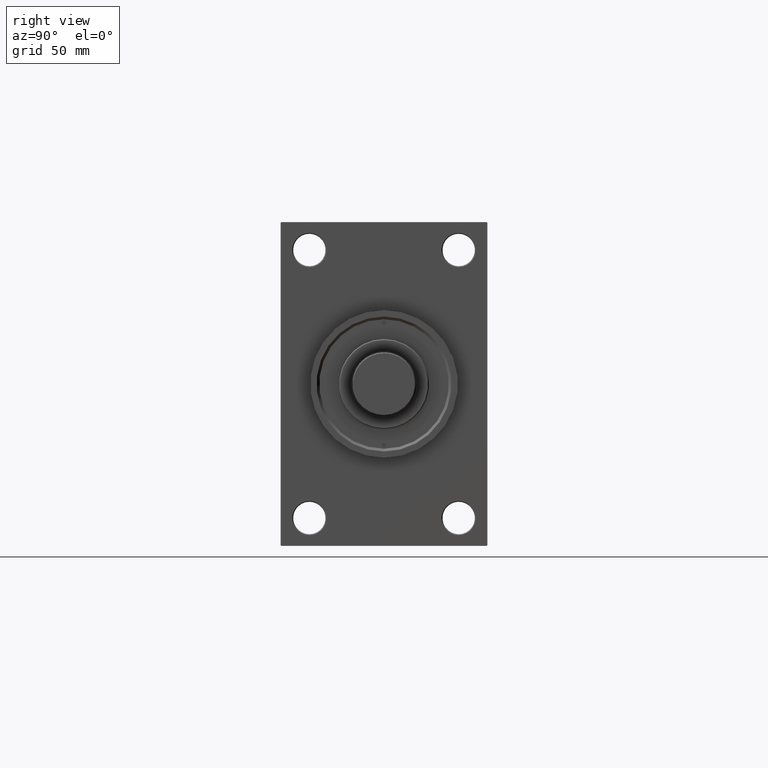
[diagram: clean part render]
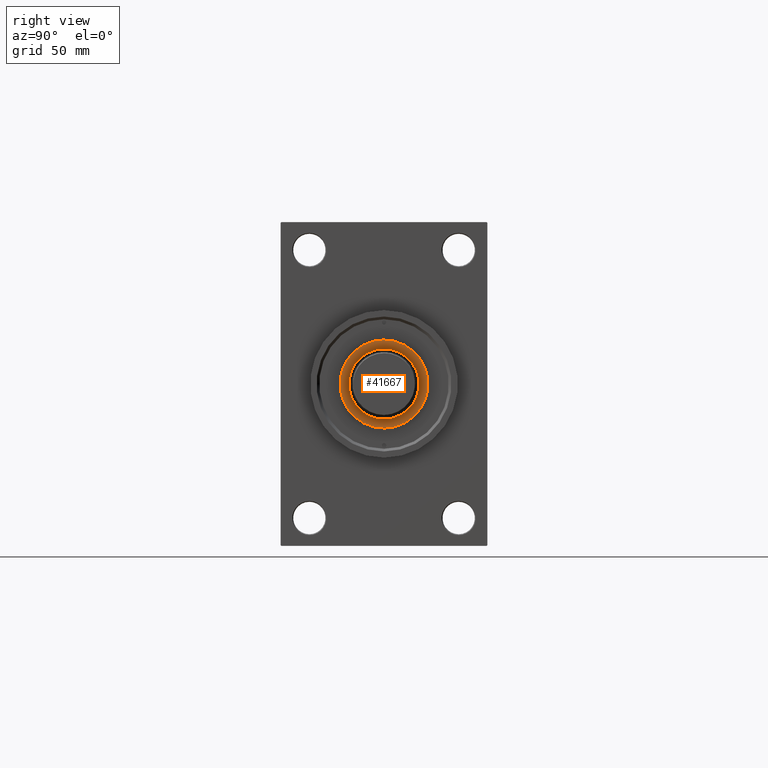
[diagram: same view with one face highlighted and labeled with its STEP entity id]
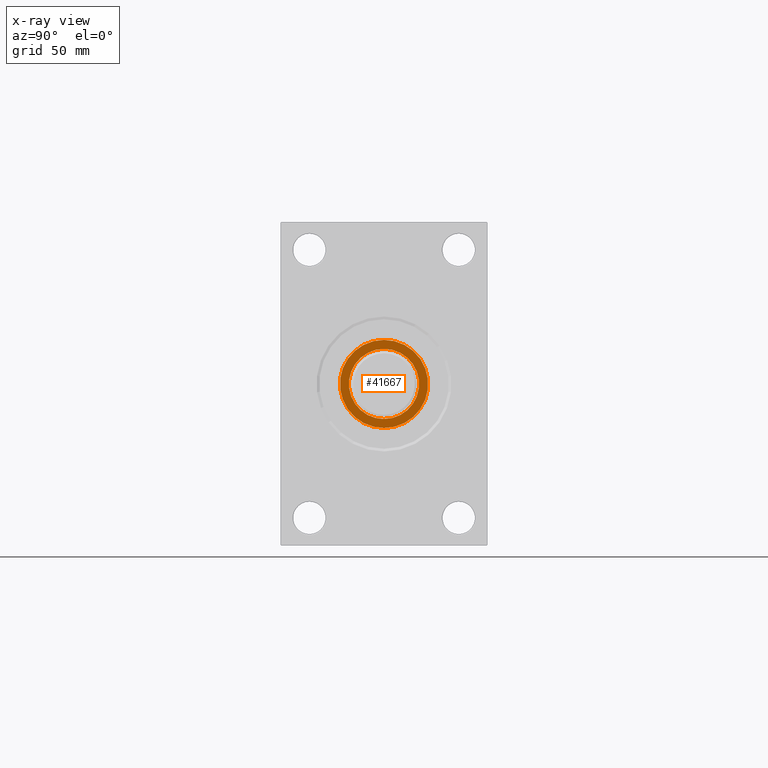
[diagram: x-ray of the same camera — body ghosted, the highlighted face saturated]
A machine part, right view. The second image highlights one B-rep face of the part: STEP entity #41667.
The next image is the same camera in x-ray: the body ghosted, the highlighted face saturated — about 0% of this face is hidden behind the body in this view.
In plain terms, the highlighted planar face has unit normal (1, -0, -0).
Its self-contained STEP definition (entity closure, byte-faithful):
#1165 = CARTESIAN_POINT ( 'NONE',  ( -19.50000000000000000, 2.388061258337338939E-15, 52.25999999999999801 ) ) ;
#1796 = EDGE_LOOP ( 'NONE', ( #19476, #15186 ) ) ;
#2162 = ORIENTED_EDGE ( 'NONE', *, *, #46682, .F. ) ;
#2907 = DIRECTION ( 'NONE',  ( 1.000000000000000000, 0.000000000000000000, -0.000000000000000000 ) ) ;
#2909 = CARTESIAN_POINT ( 'NONE',  ( 24.49999999999998224, 3.031000827889698072E-15, 52.25999999999999801 ) ) ;
#3133 = FACE_OUTER_BOUND ( 'NONE', #1796, .T. ) ;
#4364 = CIRCLE ( 'NONE', #25416, 24.49999999999998224 ) ;
#4674 = DIRECTION ( 'NONE',  ( 1.000000000000000000, 0.000000000000000000, 0.000000000000000000 ) ) ;
#7005 = DIRECTION ( 'NONE',  ( 1.000000000000000000, 0.000000000000000000, 0.000000000000000000 ) ) ;
#7702 = VERTEX_POINT ( 'NONE', #2909 ) ;
#9811 = VERTEX_POINT ( 'NONE', #22047 ) ;
#12539 = CIRCLE ( 'NONE', #18801, 24.49999999999998224 ) ;
#14012 = CARTESIAN_POINT ( 'NONE',  ( 0.000000000000000000, 0.000000000000000000, 52.25999999999999801 ) ) ;
#14124 = DIRECTION ( 'NONE',  ( 0.000000000000000000, 0.000000000000000000, 1.000000000000000000 ) ) ;
#15001 = AXIS2_PLACEMENT_3D ( 'NONE', #29535, #14124, #7005 ) ;
#15186 = ORIENTED_EDGE ( 'NONE', *, *, #31865, .T. ) ;
#15990 = AXIS2_PLACEMENT_3D ( 'NONE', #21371, #47737, #29436 ) ;
#16747 = CIRCLE ( 'NONE', #15990, 19.50000000000000000 ) ;
#18074 = CARTESIAN_POINT ( 'NONE',  ( 0.000000000000000000, 0.000000000000000000, 52.25999999999999801 ) ) ;
#18680 = EDGE_CURVE ( 'NONE', #9811, #37497, #32931, .T. ) ;
#18801 = AXIS2_PLACEMENT_3D ( 'NONE', #14012, #25000, #20883 ) ;
#19476 = ORIENTED_EDGE ( 'NONE', *, *, #38134, .T. ) ;
#19708 = AXIS2_PLACEMENT_3D ( 'NONE', #18074, #32992, #2907 ) ;
#20883 = DIRECTION ( 'NONE',  ( 1.000000000000000000, 0.000000000000000000, 0.000000000000000000 ) ) ;
#21262 = CARTESIAN_POINT ( 'NONE',  ( -24.49999999999998224, 0.000000000000000000, 52.25999999999999801 ) ) ;
#21371 = CARTESIAN_POINT ( 'NONE',  ( 0.000000000000000000, 0.000000000000000000, 52.25999999999999801 ) ) ;
#22047 = CARTESIAN_POINT ( 'NONE',  ( 19.50000000000000000, 0.000000000000000000, 52.25999999999999801 ) ) ;
#25000 = DIRECTION ( 'NONE',  ( 0.000000000000000000, 0.000000000000000000, 1.000000000000000000 ) ) ;
#25416 = AXIS2_PLACEMENT_3D ( 'NONE', #25503, #40421, #4674 ) ;
#25503 = CARTESIAN_POINT ( 'NONE',  ( 0.000000000000000000, 0.000000000000000000, 52.25999999999999801 ) ) ;
#26225 = VERTEX_POINT ( 'NONE', #21262 ) ;
#29252 = ORIENTED_EDGE ( 'NONE', *, *, #18680, .F. ) ;
#29436 = DIRECTION ( 'NONE',  ( 1.000000000000000000, 0.000000000000000000, 0.000000000000000000 ) ) ;
#29535 = CARTESIAN_POINT ( 'NONE',  ( 0.000000000000000000, 0.000000000000000000, 52.25999999999999801 ) ) ;
#31865 = EDGE_CURVE ( 'NONE', #7702, #26225, #4364, .T. ) ;
#32516 = FACE_BOUND ( 'NONE', #33543, .T. ) ;
#32931 = CIRCLE ( 'NONE', #15001, 19.50000000000000000 ) ;
#32992 = DIRECTION ( 'NONE',  ( 0.000000000000000000, 0.000000000000000000, 1.000000000000000000 ) ) ;
#33543 = EDGE_LOOP ( 'NONE', ( #29252, #2162 ) ) ;
#37497 = VERTEX_POINT ( 'NONE', #1165 ) ;
#38134 = EDGE_CURVE ( 'NONE', #26225, #7702, #12539, .T. ) ;
#40326 = PLANE ( 'NONE',  #19708 ) ;
#40421 = DIRECTION ( 'NONE',  ( 0.000000000000000000, 0.000000000000000000, 1.000000000000000000 ) ) ;
#41667 = ADVANCED_FACE ( 'NONE', ( #32516, #3133 ), #40326, .T. ) ;
#46682 = EDGE_CURVE ( 'NONE', #37497, #9811, #16747, .T. ) ;
#47737 = DIRECTION ( 'NONE',  ( 0.000000000000000000, 0.000000000000000000, 1.000000000000000000 ) ) ;